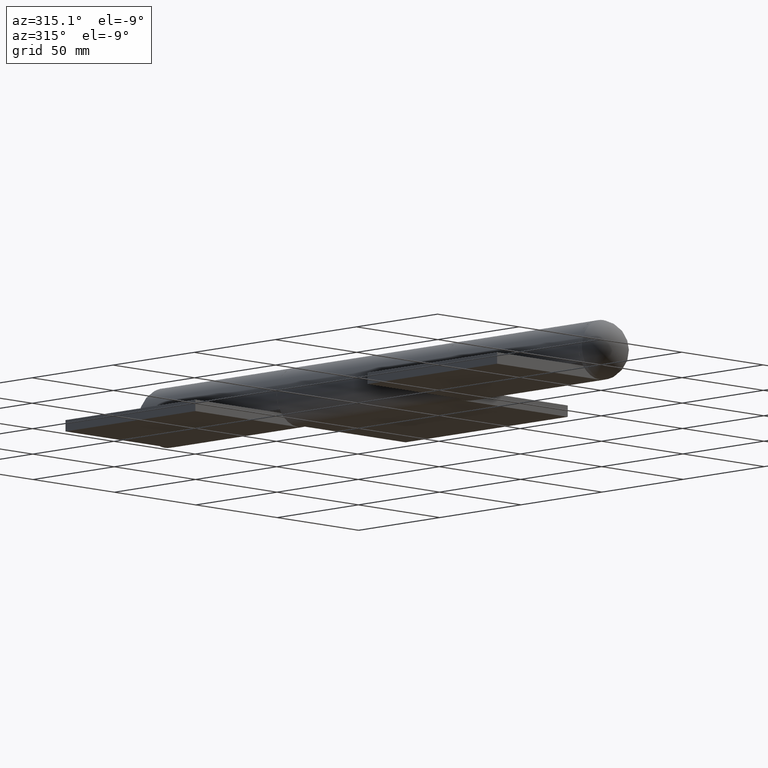
[diagram: clean part render]
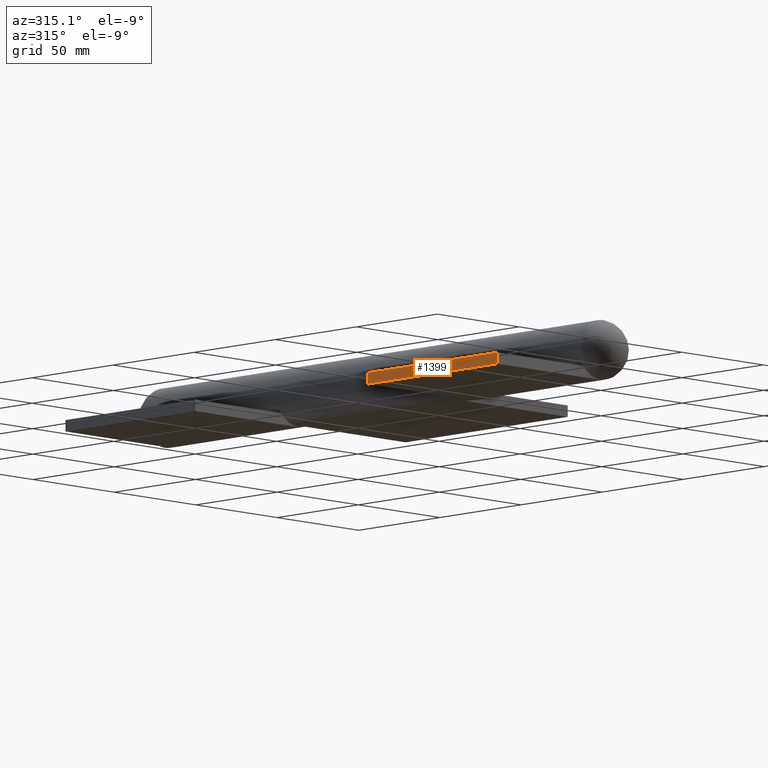
[diagram: same view with one face highlighted and labeled with its STEP entity id]
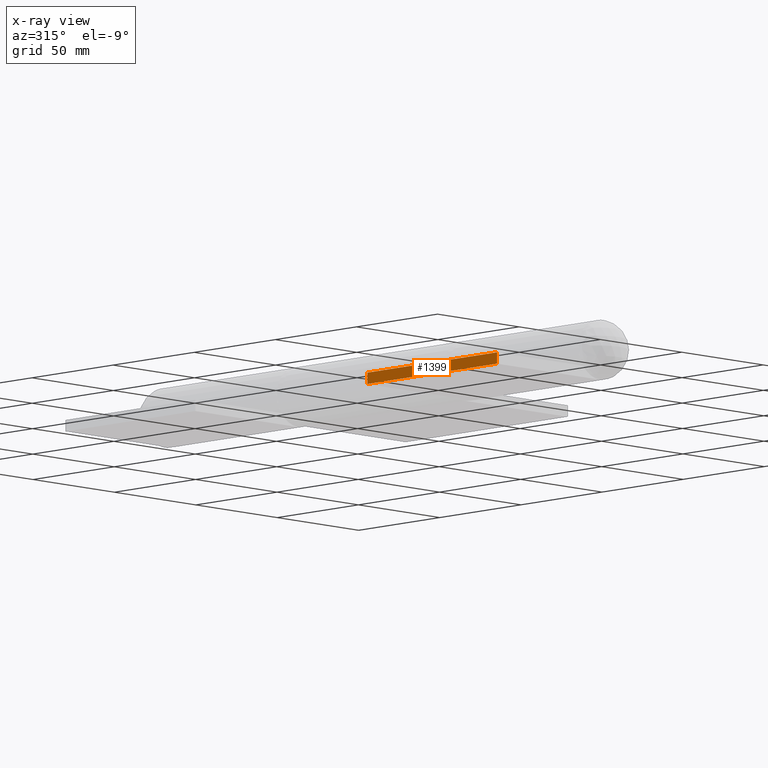
[diagram: x-ray of the same camera — body ghosted, the highlighted face saturated]
A machine part, auxiliary view. The second image highlights one B-rep face of the part: STEP entity #1399.
The next image is the same camera in x-ray: the body ghosted, the highlighted face saturated — about 0% of this face is hidden behind the body in this view.
In plain terms, the highlighted planar face has unit normal (1, 0, -0).
Its self-contained STEP definition (entity closure, byte-faithful):
#496 = EDGE_CURVE ( 'NONE', #6351, #8079, #5222, .T. ) ;
#509 = VECTOR ( 'NONE', #7886, 1000.000000000000000 ) ;
#692 = CARTESIAN_POINT ( 'NONE',  ( -13.04999999999999893, 40.00000000000000000, 63.04500000000000171 ) ) ;
#1399 = ADVANCED_FACE ( 'NONE', ( #2277 ), #10379, .F. ) ;
#1713 = CARTESIAN_POINT ( 'NONE',  ( -8.050000000000000711, 40.00000000000000000, 63.04500000000000171 ) ) ;
#1867 = CARTESIAN_POINT ( 'NONE',  ( -13.04999999999999893, 40.00000000000000000, 63.04500000000000171 ) ) ;
#2119 = EDGE_CURVE ( 'NONE', #10095, #11537, #11210, .T. ) ;
#2277 = FACE_OUTER_BOUND ( 'NONE', #10611, .T. ) ;
#2337 = ORIENTED_EDGE ( 'NONE', *, *, #2119, .T. ) ;
#2972 = CARTESIAN_POINT ( 'NONE',  ( -13.04999999999999893, -40.00000000000000000, 63.04500000000000171 ) ) ;
#2974 = DIRECTION ( 'NONE',  ( 1.000000000000000000, 0.000000000000000000, 0.000000000000000000 ) ) ;
#2980 = ORIENTED_EDGE ( 'NONE', *, *, #496, .F. ) ;
#3007 = VECTOR ( 'NONE', #2974, 1000.000000000000000 ) ;
#3654 = LINE ( 'NONE', #6140, #3007 ) ;
#3722 = DIRECTION ( 'NONE',  ( -0.000000000000000000, -1.000000000000000000, -0.000000000000000000 ) ) ;
#4305 = ORIENTED_EDGE ( 'NONE', *, *, #7217, .F. ) ;
#4361 = CARTESIAN_POINT ( 'NONE',  ( -13.04999999999999893, 40.00000000000000000, 63.04500000000000171 ) ) ;
#5222 = LINE ( 'NONE', #1713, #8966 ) ;
#5269 = AXIS2_PLACEMENT_3D ( 'NONE', #4361, #11401, #6379 ) ;
#5593 = DIRECTION ( 'NONE',  ( -0.000000000000000000, -1.000000000000000000, -0.000000000000000000 ) ) ;
#5606 = EDGE_CURVE ( 'NONE', #11537, #8079, #11636, .T. ) ;
#6140 = CARTESIAN_POINT ( 'NONE',  ( -13.04999999999999893, 40.00000000000000000, 63.04500000000000171 ) ) ;
#6260 = CARTESIAN_POINT ( 'NONE',  ( -8.050000000000000711, -40.00000000000000000, 63.04500000000000171 ) ) ;
#6351 = VERTEX_POINT ( 'NONE', #12996 ) ;
#6379 = DIRECTION ( 'NONE',  ( -1.000000000000000000, 0.000000000000000000, -0.000000000000000000 ) ) ;
#7217 = EDGE_CURVE ( 'NONE', #10095, #6351, #3654, .T. ) ;
#7459 = CARTESIAN_POINT ( 'NONE',  ( -13.04999999999999893, -40.00000000000000000, 63.04500000000000171 ) ) ;
#7578 = ORIENTED_EDGE ( 'NONE', *, *, #5606, .T. ) ;
#7886 = DIRECTION ( 'NONE',  ( 1.000000000000000000, 0.000000000000000000, 0.000000000000000000 ) ) ;
#8079 = VERTEX_POINT ( 'NONE', #6260 ) ;
#8966 = VECTOR ( 'NONE', #5593, 1000.000000000000000 ) ;
#10095 = VERTEX_POINT ( 'NONE', #1867 ) ;
#10379 = PLANE ( 'NONE',  #5269 ) ;
#10611 = EDGE_LOOP ( 'NONE', ( #7578, #2980, #4305, #2337 ) ) ;
#11210 = LINE ( 'NONE', #692, #11353 ) ;
#11353 = VECTOR ( 'NONE', #3722, 1000.000000000000000 ) ;
#11401 = DIRECTION ( 'NONE',  ( 0.000000000000000000, 0.000000000000000000, -1.000000000000000000 ) ) ;
#11537 = VERTEX_POINT ( 'NONE', #7459 ) ;
#11636 = LINE ( 'NONE', #2972, #509 ) ;
#12996 = CARTESIAN_POINT ( 'NONE',  ( -8.050000000000000711, 40.00000000000000000, 63.04500000000000171 ) ) ;